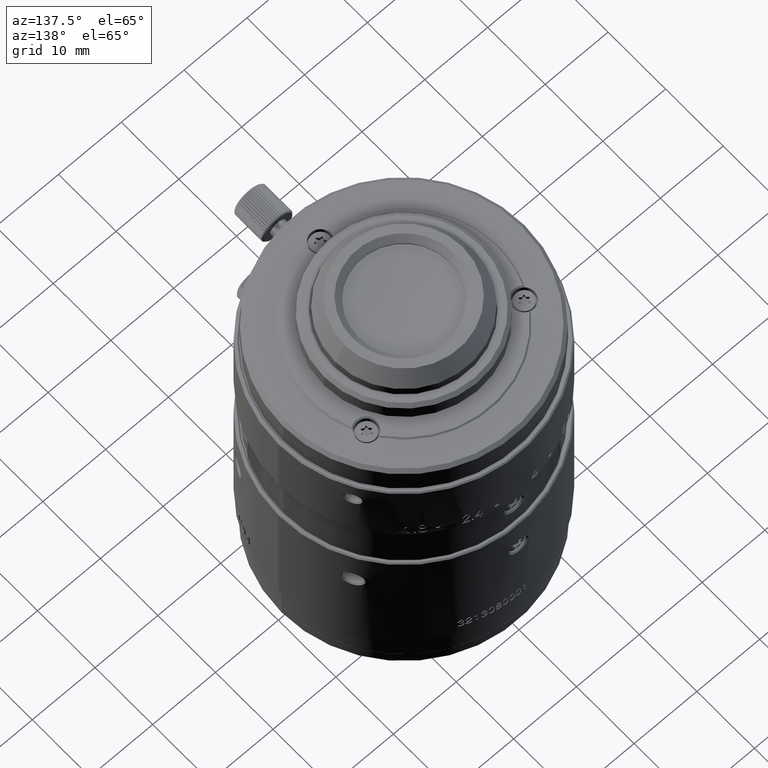
[diagram: clean part render]
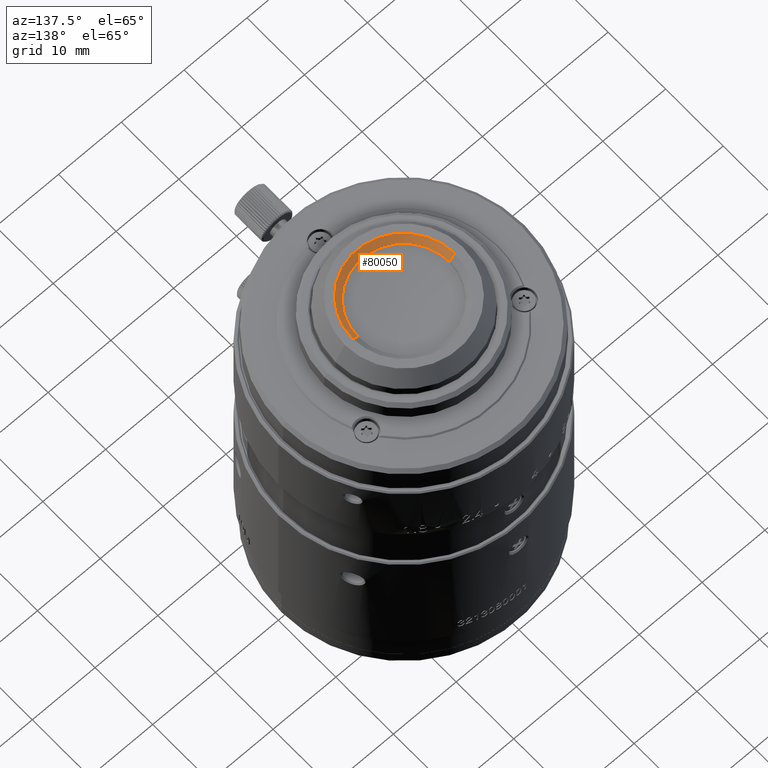
[diagram: same view with one face highlighted and labeled with its STEP entity id]
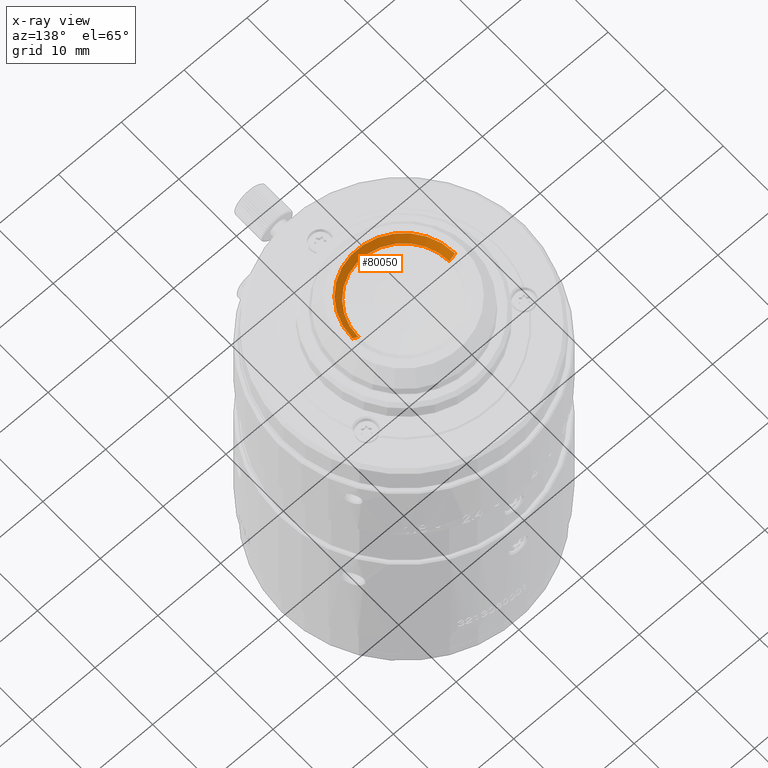
[diagram: x-ray of the same camera — body ghosted, the highlighted face saturated]
A machine part, auxiliary view. The second image highlights one B-rep face of the part: STEP entity #80050.
The next image is the same camera in x-ray: the body ghosted, the highlighted face saturated — about 0% of this face is hidden behind the body in this view.
In plain terms, the highlighted conical surface has half-angle 45 deg.
Its self-contained STEP definition (entity closure, byte-faithful):
#1810 = VERTEX_POINT ( 'NONE', #15448 ) ;
#3384 = DIRECTION ( 'NONE',  ( 0.000000000000000000, 0.000000000000000000, 1.000000000000000000 ) ) ;
#11560 = CARTESIAN_POINT ( 'NONE',  ( 7.250000000000000000, 0.000000000000000000, 56.05000000000000426 ) ) ;
#11974 = AXIS2_PLACEMENT_3D ( 'NONE', #69881, #71097, #63646 ) ;
#12435 = ORIENTED_EDGE ( 'NONE', *, *, #16377, .F. ) ;
#12668 = ORIENTED_EDGE ( 'NONE', *, *, #54313, .T. ) ;
#15448 = CARTESIAN_POINT ( 'NONE',  ( -8.149999999999998579, 0.000000000000000000, 56.95000000000000284 ) ) ;
#16377 = EDGE_CURVE ( 'NONE', #35666, #1810, #34410, .T. ) ;
#18915 = LINE ( 'NONE', #44249, #57445 ) ;
#20667 = DIRECTION ( 'NONE',  ( 0.7071067811865969777, 0.000000000000000000, 0.7071067811864980568 ) ) ;
#23273 = CARTESIAN_POINT ( 'NONE',  ( 0.000000000000000000, 0.000000000000000000, 56.50000000000000000 ) ) ;
#23511 = ORIENTED_EDGE ( 'NONE', *, *, #58894, .T. ) ;
#30367 = AXIS2_PLACEMENT_3D ( 'NONE', #23273, #3384, #42799 ) ;
#34410 = CIRCLE ( 'NONE', #80825, 8.149999999999998579 ) ;
#34968 = CARTESIAN_POINT ( 'NONE',  ( 8.149999999999998579, 0.000000000000000000, 56.95000000000000284 ) ) ;
#35312 = CARTESIAN_POINT ( 'NONE',  ( 0.000000000000000000, 0.000000000000000000, 56.95000000000000284 ) ) ;
#35666 = VERTEX_POINT ( 'NONE', #34968 ) ;
#38495 = VERTEX_POINT ( 'NONE', #80045 ) ;
#39226 = CARTESIAN_POINT ( 'NONE',  ( -7.250000000000000000, 0.000000000000000000, 56.05000000000000426 ) ) ;
#42778 = DIRECTION ( 'NONE',  ( 0.000000000000000000, 0.000000000000000000, -1.000000000000000000 ) ) ;
#42799 = DIRECTION ( 'NONE',  ( 1.000000000000000000, 0.000000000000000000, 0.000000000000000000 ) ) ;
#44249 = CARTESIAN_POINT ( 'NONE',  ( -7.250000000000000000, 0.000000000000000000, 56.05000000000000426 ) ) ;
#44470 = VERTEX_POINT ( 'NONE', #39226 ) ;
#47790 = CIRCLE ( 'NONE', #11974, 7.250000000000000000 ) ;
#49772 = VECTOR ( 'NONE', #20667, 1000.000000000000000 ) ;
#54313 = EDGE_CURVE ( 'NONE', #38495, #44470, #47790, .T. ) ;
#57445 = VECTOR ( 'NONE', #69590, 1000.000000000000000 ) ;
#58894 = EDGE_CURVE ( 'NONE', #44470, #1810, #18915, .T. ) ;
#61943 = EDGE_CURVE ( 'NONE', #38495, #35666, #74694, .T. ) ;
#63646 = DIRECTION ( 'NONE',  ( 1.000000000000000000, 0.000000000000000000, 0.000000000000000000 ) ) ;
#68117 = DIRECTION ( 'NONE',  ( 1.000000000000000000, 0.000000000000000000, 0.000000000000000000 ) ) ;
#69590 = DIRECTION ( 'NONE',  ( -0.7071067811865969777, 0.000000000000000000, 0.7071067811864980568 ) ) ;
#69881 = CARTESIAN_POINT ( 'NONE',  ( 0.000000000000000000, 0.000000000000000000, 56.05000000000000426 ) ) ;
#71097 = DIRECTION ( 'NONE',  ( 0.000000000000000000, 0.000000000000000000, -1.000000000000000000 ) ) ;
#71855 = ORIENTED_EDGE ( 'NONE', *, *, #61943, .F. ) ;
#72823 = CONICAL_SURFACE ( 'NONE', #30367, 7.700000000000000178, 0.7853981633972997312 ) ;
#74694 = LINE ( 'NONE', #11560, #49772 ) ;
#80045 = CARTESIAN_POINT ( 'NONE',  ( 7.250000000000000000, 0.000000000000000000, 56.05000000000000426 ) ) ;
#80050 = ADVANCED_FACE ( 'NONE', ( #80173 ), #72823, .F. ) ;
#80173 = FACE_OUTER_BOUND ( 'NONE', #81196, .T. ) ;
#80825 = AXIS2_PLACEMENT_3D ( 'NONE', #35312, #42778, #68117 ) ;
#81196 = EDGE_LOOP ( 'NONE', ( #71855, #12668, #23511, #12435 ) ) ;